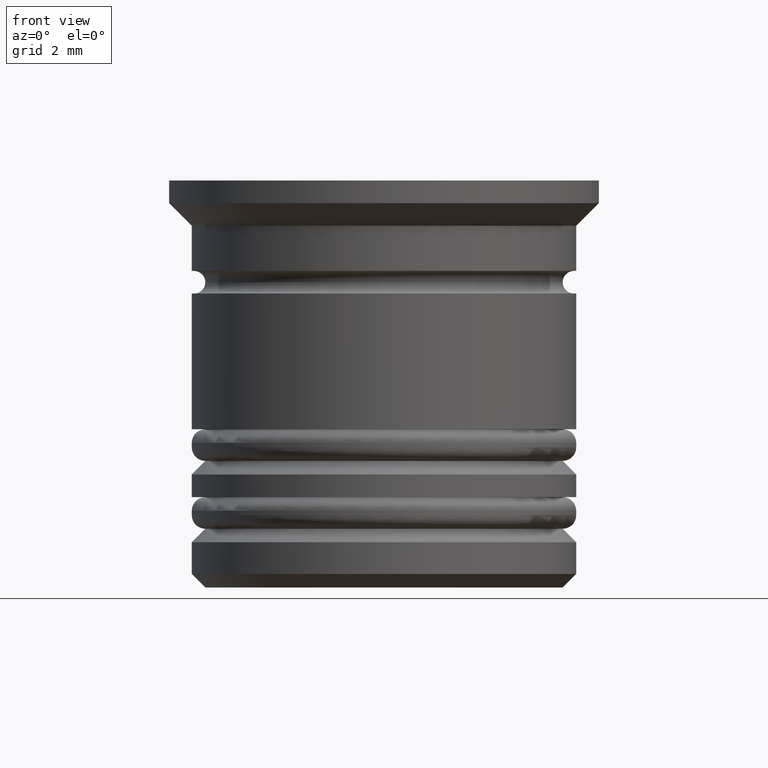
[diagram: clean part render]
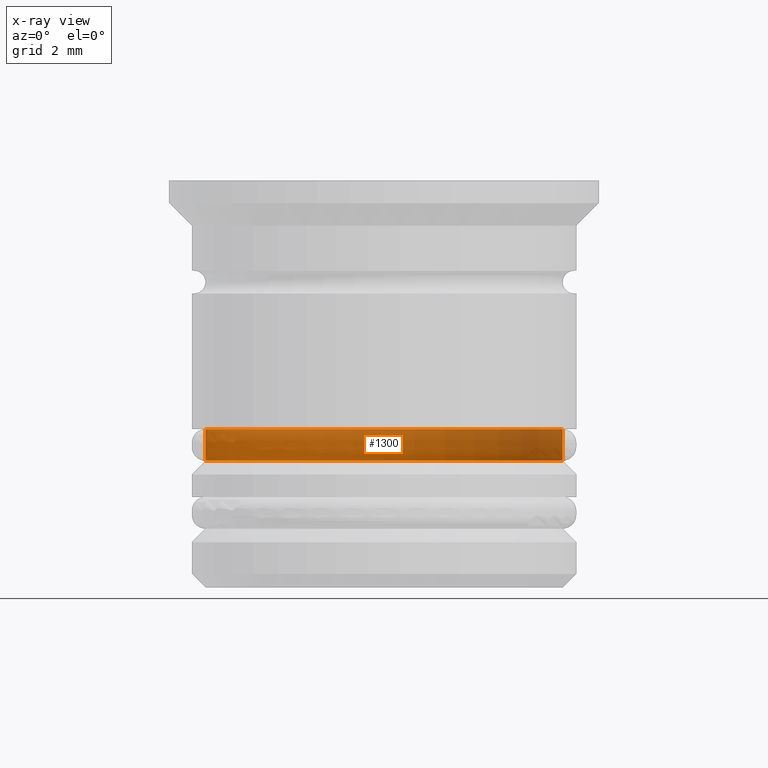
[diagram: x-ray — body ghosted, one internal face saturated and labeled with its STEP entity id]
A machine part, front view, then the same camera in x-ray: the body is ghosted and one INTERNAL B-rep face — a face not visible from any outside direction — is saturated and labeled: STEP entity #1300.
In plain terms, the highlighted cylindrical surface (partial cylindrical patch) has radius 3.95 mm, axis along (-0, -0, 1).
Its self-contained STEP definition (entity closure, byte-faithful):
#82 = VERTEX_POINT ( 'NONE', #127 ) ;
#87 = CARTESIAN_POINT ( 'NONE',  ( 3.950000000000000178, 0.000000000000000000, -6.200000000000004619 ) ) ;
#127 = CARTESIAN_POINT ( 'NONE',  ( -3.950000000000000178, 4.837354856632045057E-16, -5.499999999999999112 ) ) ;
#179 = LINE ( 'NONE', #970, #1428 ) ;
#192 = DIRECTION ( 'NONE',  ( -0.000000000000000000, -0.000000000000000000, 1.000000000000000000 ) ) ;
#232 = CARTESIAN_POINT ( 'NONE',  ( -3.950000000000000178, 4.837354856632045057E-16, 0.000000000000000000 ) ) ;
#241 = LINE ( 'NONE', #232, #324 ) ;
#257 = VERTEX_POINT ( 'NONE', #87 ) ;
#298 = DIRECTION ( 'NONE',  ( -0.000000000000000000, -0.000000000000000000, 1.000000000000000000 ) ) ;
#305 = AXIS2_PLACEMENT_3D ( 'NONE', #1510, #1136, #408 ) ;
#324 = VECTOR ( 'NONE', #1848, 1000.000000000000000 ) ;
#408 = DIRECTION ( 'NONE',  ( 1.000000000000000000, 0.000000000000000000, 0.000000000000000000 ) ) ;
#468 = ORIENTED_EDGE ( 'NONE', *, *, #2012, .T. ) ;
#603 = EDGE_CURVE ( 'NONE', #1787, #82, #707, .T. ) ;
#707 = CIRCLE ( 'NONE', #305, 3.950000000000000178 ) ;
#783 = ORIENTED_EDGE ( 'NONE', *, *, #603, .F. ) ;
#828 = DIRECTION ( 'NONE',  ( -1.000000000000000000, 0.000000000000000000, 0.000000000000000000 ) ) ;
#914 = FACE_OUTER_BOUND ( 'NONE', #1517, .T. ) ;
#939 = CARTESIAN_POINT ( 'NONE',  ( -3.950000000000000178, 4.837354856632045057E-16, -6.200000000000004619 ) ) ;
#970 = CARTESIAN_POINT ( 'NONE',  ( 3.950000000000000178, 0.000000000000000000, 0.000000000000000000 ) ) ;
#973 = CARTESIAN_POINT ( 'NONE',  ( 0.000000000000000000, 0.000000000000000000, -6.200000000000004619 ) ) ;
#1079 = CARTESIAN_POINT ( 'NONE',  ( 0.000000000000000000, 0.000000000000000000, 0.000000000000000000 ) ) ;
#1110 = CARTESIAN_POINT ( 'NONE',  ( 3.950000000000000178, 0.000000000000000000, -5.499999999999999112 ) ) ;
#1136 = DIRECTION ( 'NONE',  ( -0.000000000000000000, -0.000000000000000000, 1.000000000000000000 ) ) ;
#1203 = CYLINDRICAL_SURFACE ( 'NONE', #1493, 3.950000000000000178 ) ;
#1229 = EDGE_CURVE ( 'NONE', #257, #1787, #179, .T. ) ;
#1242 = VERTEX_POINT ( 'NONE', #939 ) ;
#1300 = ADVANCED_FACE ( 'NONE', ( #914 ), #1203, .T. ) ;
#1302 = CIRCLE ( 'NONE', #1405, 3.950000000000000178 ) ;
#1394 = ORIENTED_EDGE ( 'NONE', *, *, #1727, .T. ) ;
#1405 = AXIS2_PLACEMENT_3D ( 'NONE', #973, #192, #828 ) ;
#1428 = VECTOR ( 'NONE', #1867, 1000.000000000000000 ) ;
#1493 = AXIS2_PLACEMENT_3D ( 'NONE', #1079, #298, #1568 ) ;
#1510 = CARTESIAN_POINT ( 'NONE',  ( 0.000000000000000000, 0.000000000000000000, -5.499999999999999112 ) ) ;
#1517 = EDGE_LOOP ( 'NONE', ( #1394, #468, #783, #1612 ) ) ;
#1568 = DIRECTION ( 'NONE',  ( 1.000000000000000000, 0.000000000000000000, 0.000000000000000000 ) ) ;
#1612 = ORIENTED_EDGE ( 'NONE', *, *, #1229, .F. ) ;
#1727 = EDGE_CURVE ( 'NONE', #257, #1242, #1302, .T. ) ;
#1787 = VERTEX_POINT ( 'NONE', #1110 ) ;
#1848 = DIRECTION ( 'NONE',  ( -0.000000000000000000, -0.000000000000000000, 1.000000000000000000 ) ) ;
#1867 = DIRECTION ( 'NONE',  ( -0.000000000000000000, -0.000000000000000000, 1.000000000000000000 ) ) ;
#2012 = EDGE_CURVE ( 'NONE', #1242, #82, #241, .T. ) ;